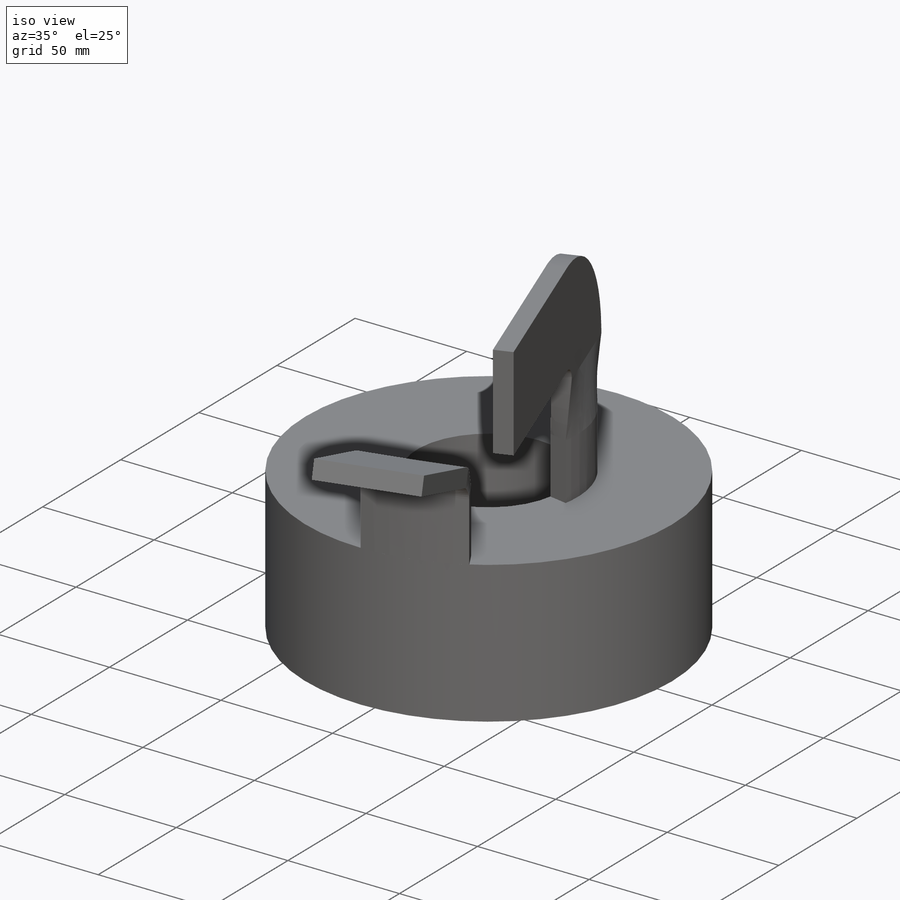
[diagram: iso view]
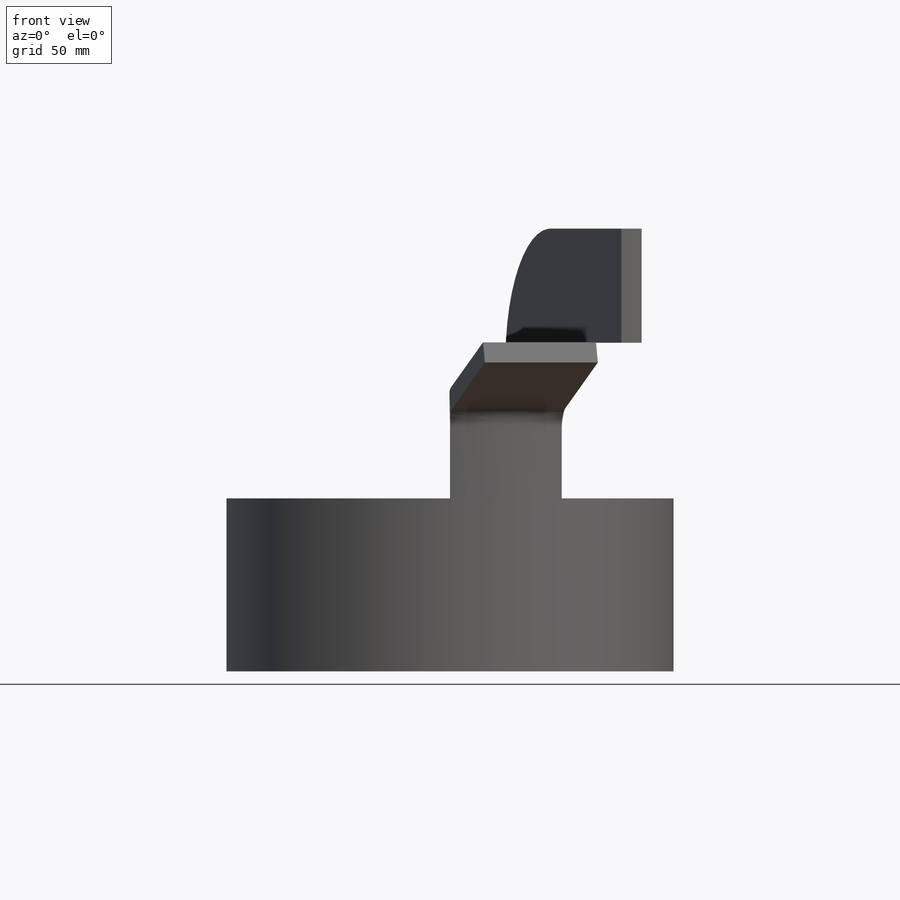
[diagram: front view]
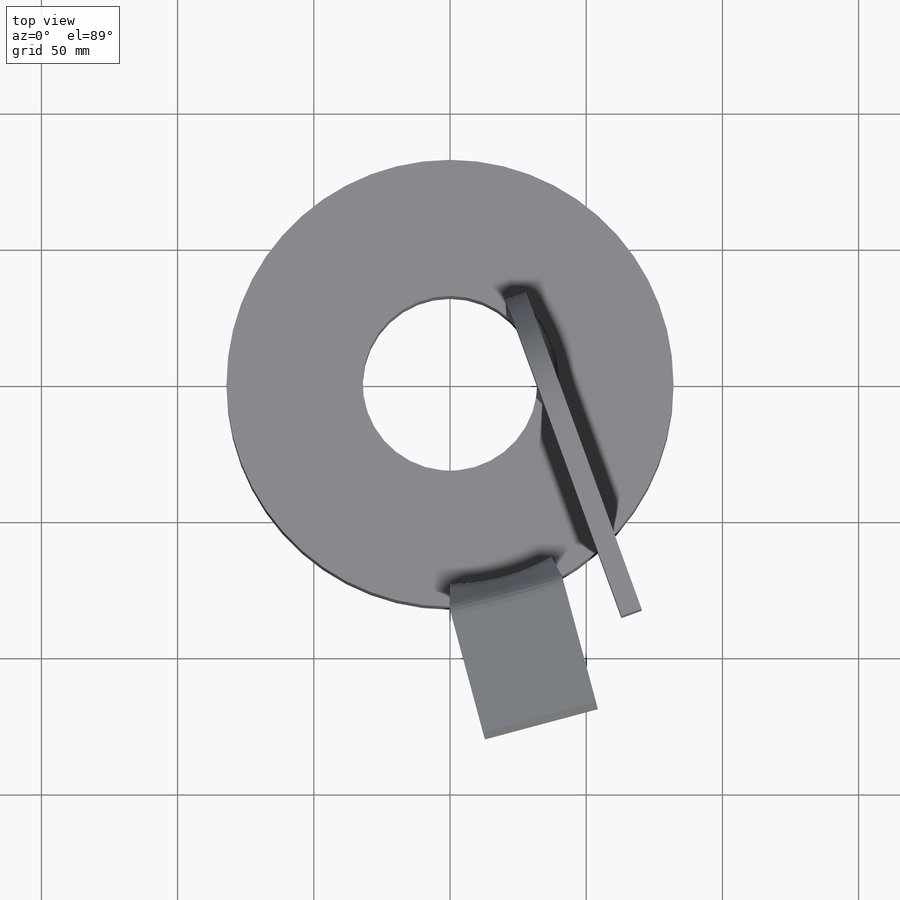
[diagram: top view]
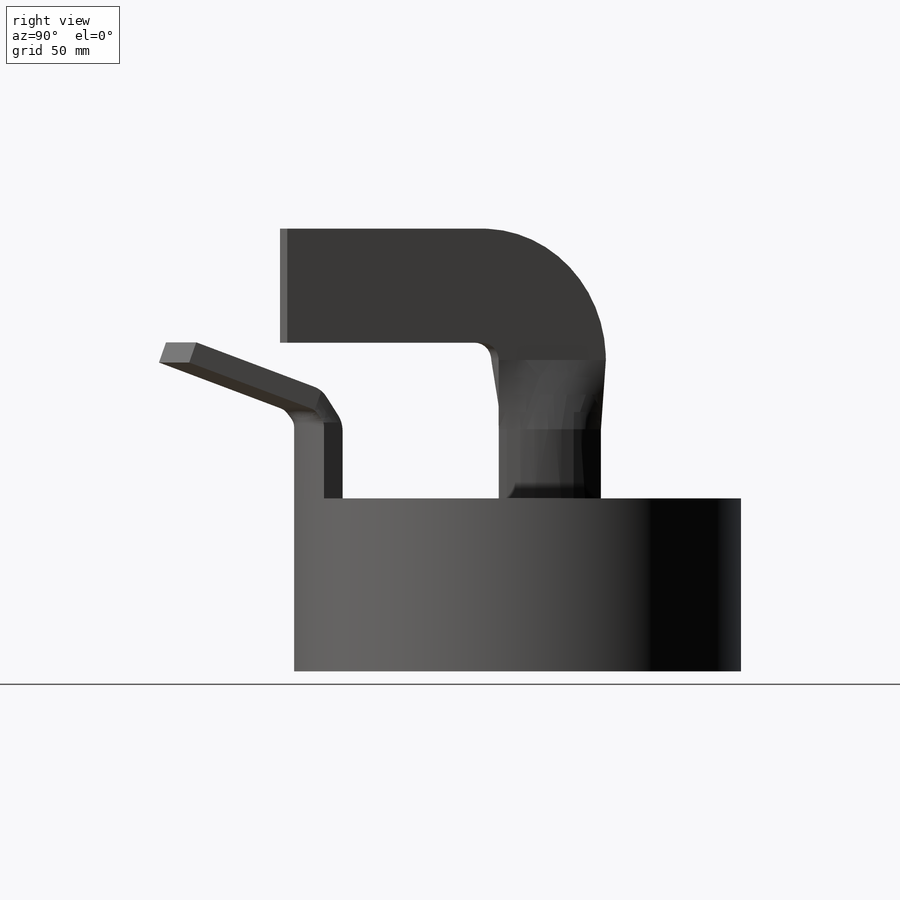
[diagram: right view]
SOLIDWORKS PART (.sldprt)
format: sldprt  version: not decoded by parser v0  size: 367,104 bytes
history: native  units: mm
features: sketch x9, plane x6, extrude x3, revolve x3, fillet x2, material x1 (+11 scaffold rows collapsed)
feature tree (35):
  scaffold x11  (default folders/planes/origin — collapsed)
  material  "Copper"
  sketch  "Sketch1"  dims[D1=31.8135mm]
  extrude  "Boss-Extrude1"  Depth=63.5mm
  sketch  "Sketch3"  dims[D1=7.874mm D2=27.94mm]
  revolve  "Revolve1"  Angle=30deg
  sketch  "Sketch4"  dims[D1=80.0deg D2=105.0deg D3=15.0deg D4=30.0deg]
  plane  "80 deg plane"
  sketch  "Sketch5"  dims[D1=7.874mm D2=25.4mm]
  revolve  "Revolve2"  Angle=60deg
  plane  "Plane5"
  plane  "Plane3"
  plane  "coil wire exit plane"  Offset=88.9mm
  sketch  "Sketch10"  dims[D1=7.874mm D2=42.926mm]
  extrude  "Boss-Extrude2"  [1 undecoded]
  sketch  "Sketch10<2>"  dims[D1=50.8mm]
  fillet  "Fillet1"  Radius=10.16mm
  fillet  "Fillet2"  Radius=5.08mm
  plane  "Plane6"
  plane  "Plane8"  Offset=50.8mm
  sketch  "Sketch12"  dims[D1=41.91mm D2=6.35mm]
  revolve  "Revolve3"  [1 undecoded]
  sketch  "Sketch12<2>"  dims[D1=90.0deg]
  sketch  "Sketch14"
  extrude  "Boss-Extrude3"  Depth=76.2mm
decode coverage: 14 of 17 modeling features carry decoded parameters
note: 2 parameter values undecoded
note: suppression state not decoded; provenance and decode notes live in map.json
